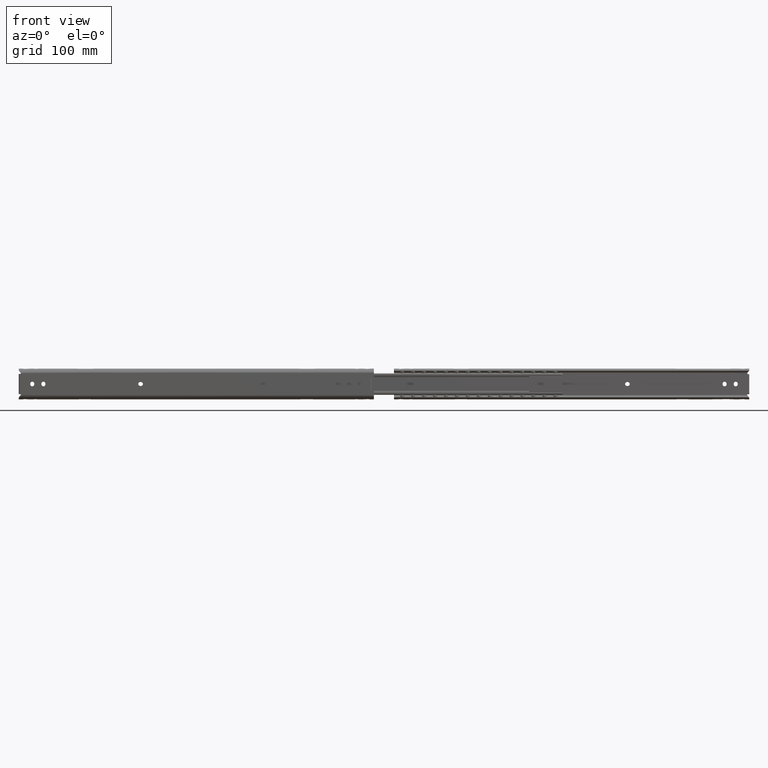
[diagram: clean part render]
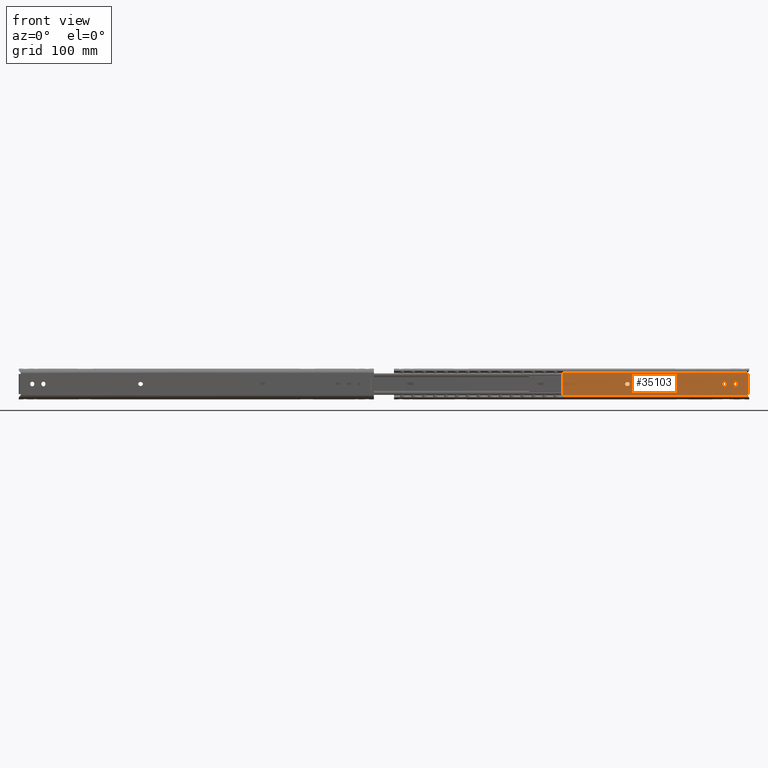
[diagram: same view with one face highlighted and labeled with its STEP entity id]
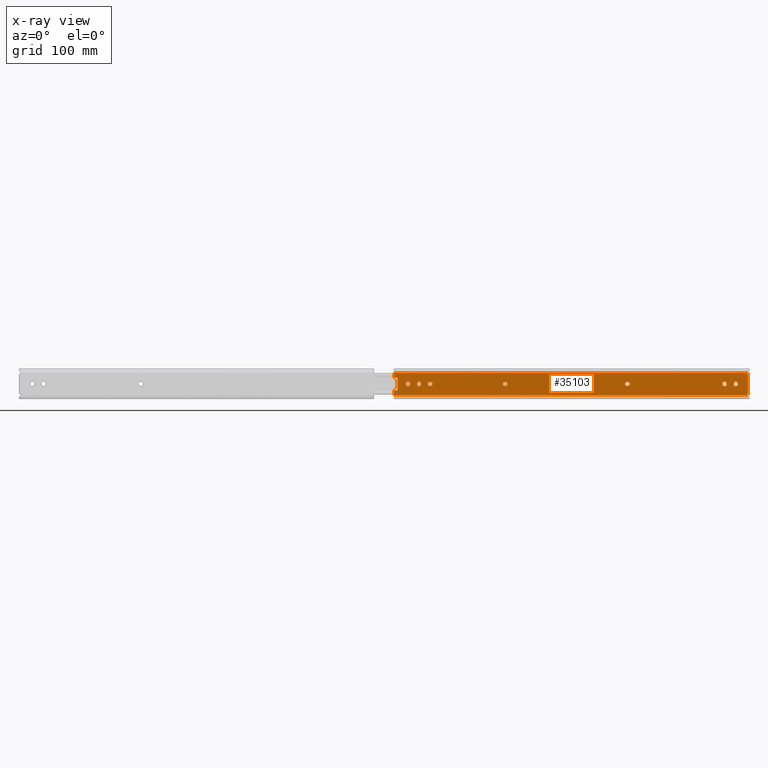
[diagram: x-ray of the same camera — body ghosted, the highlighted face saturated]
A machine part, front view. The second image highlights one B-rep face of the part: STEP entity #35103.
The next image is the same camera in x-ray: the body ghosted, the highlighted face saturated — about 0% of this face is hidden behind the body in this view.
In plain terms, the highlighted face is a freeform B-spline surface patch.
Its self-contained STEP definition (entity closure, byte-faithful):
#31739=CARTESIAN_POINT('',(-17.750000000000000,-1.599999999999045,-0.400000000000091));
#31740=VERTEX_POINT('',#31739);
#31753=CARTESIAN_POINT('',(-17.750000000000000,-1.599999999999000,0.400000000000007));
#31754=VERTEX_POINT('',#31753);
#31760=CARTESIAN_POINT('',(-17.750000000000000,-1.599999999999045,-0.400000000000091));
#31761=CARTESIAN_POINT('',(-17.750000000000000,-1.599999999999000,0.400000000000007));
#31762=QUASI_UNIFORM_CURVE('',1,(#31760,#31761),.UNSPECIFIED.,.F.,.U.);
#31763=EDGE_CURVE('',#31740,#31754,#31762,.T.);
#31786=CARTESIAN_POINT('',(-13.250000000000000,-1.599999999999045,0.400000000000006));
#31787=VERTEX_POINT('',#31786);
#31788=CARTESIAN_POINT('',(-13.250000000000000,-1.599999999999045,0.400000000000006));
#31789=CARTESIAN_POINT('',(-13.250000000000004,-1.599999999999046,2.650000000000006));
#31790=CARTESIAN_POINT('',(-15.500000000000000,-1.599999999999045,2.650000000000005));
#31791=CARTESIAN_POINT('',(-17.750000000000004,-1.599999999999046,2.650000000000006));
#31792=CARTESIAN_POINT('',(-17.750000000000000,-1.599999999999045,0.400000000000006));
#31800=(BOUNDED_CURVE()B_SPLINE_CURVE(2,(#31788,#31789,#31790,#31791,#31792),.UNSPECIFIED.,.F.,.U.)B_SPLINE_CURVE_WITH_KNOTS((3,2,3),(0.0,0.500000000000000,1.0),.UNSPECIFIED.)CURVE()GEOMETRIC_REPRESENTATION_ITEM()RATIONAL_B_SPLINE_CURVE((1.0,0.707106781186547,1.0,0.707106781186547,1.0))REPRESENTATION_ITEM(''));
#31801=EDGE_CURVE('',#31787,#31754,#31800,.T.);
#31842=CARTESIAN_POINT('',(-13.250000000000000,-1.599999999999045,-0.400000000000091));
#31843=VERTEX_POINT('',#31842);
#31849=CARTESIAN_POINT('',(-13.250000000000000,-1.599999999999045,0.400000000000006));
#31850=CARTESIAN_POINT('',(-13.250000000000000,-1.599999999999045,-0.400000000000091));
#31851=QUASI_UNIFORM_CURVE('',1,(#31849,#31850),.UNSPECIFIED.,.F.,.U.);
#31852=EDGE_CURVE('',#31787,#31843,#31851,.T.);
#31875=CARTESIAN_POINT('',(-17.750000000000000,-1.599999999999045,-0.400000000000091));
#31876=CARTESIAN_POINT('',(-17.750000000000004,-1.599999999999046,-2.650000000000091));
#31877=CARTESIAN_POINT('',(-15.500000000000000,-1.599999999999045,-2.650000000000091));
#31878=CARTESIAN_POINT('',(-13.250000000000004,-1.599999999999046,-2.650000000000091));
#31879=CARTESIAN_POINT('',(-13.250000000000000,-1.599999999999045,-0.400000000000091));
#31887=(BOUNDED_CURVE()B_SPLINE_CURVE(2,(#31875,#31876,#31877,#31878,#31879),.UNSPECIFIED.,.F.,.U.)B_SPLINE_CURVE_WITH_KNOTS((3,2,3),(0.0,0.500000000000000,1.0),.UNSPECIFIED.)CURVE()GEOMETRIC_REPRESENTATION_ITEM()RATIONAL_B_SPLINE_CURVE((1.0,0.707106781186547,1.0,0.707106781186547,1.0))REPRESENTATION_ITEM(''));
#31888=EDGE_CURVE('',#31740,#31843,#31887,.T.);
#31917=CARTESIAN_POINT('',(-375.149999999999980,-1.599999999999045,0.400000000000006));
#31918=VERTEX_POINT('',#31917);
#31931=CARTESIAN_POINT('',(-375.149999999999980,-1.599999999999000,-0.400000000000092));
#31932=VERTEX_POINT('',#31931);
#31938=CARTESIAN_POINT('',(-375.149999999999980,-1.599999999999045,0.400000000000006));
#31939=CARTESIAN_POINT('',(-375.149999999999980,-1.599999999999000,-0.400000000000092));
#31940=QUASI_UNIFORM_CURVE('',1,(#31938,#31939),.UNSPECIFIED.,.F.,.U.);
#31941=EDGE_CURVE('',#31918,#31932,#31940,.T.);
#31964=CARTESIAN_POINT('',(-379.649999999999980,-1.599999999999045,-0.400000000000091));
#31965=VERTEX_POINT('',#31964);
#31966=CARTESIAN_POINT('',(-379.649999999999980,-1.599999999999045,-0.400000000000091));
#31967=CARTESIAN_POINT('',(-379.650000000000090,-1.599999999999046,-2.650000000000091));
#31968=CARTESIAN_POINT('',(-377.399999999999980,-1.599999999999045,-2.650000000000091));
#31969=CARTESIAN_POINT('',(-375.150000000000090,-1.599999999999046,-2.650000000000091));
#31970=CARTESIAN_POINT('',(-375.149999999999980,-1.599999999999045,-0.400000000000091));
#31978=(BOUNDED_CURVE()B_SPLINE_CURVE(2,(#31966,#31967,#31968,#31969,#31970),.UNSPECIFIED.,.F.,.U.)B_SPLINE_CURVE_WITH_KNOTS((3,2,3),(0.0,0.500000000000000,1.0),.UNSPECIFIED.)CURVE()GEOMETRIC_REPRESENTATION_ITEM()RATIONAL_B_SPLINE_CURVE((1.0,0.707106781186547,1.0,0.707106781186547,1.0))REPRESENTATION_ITEM(''));
#31979=EDGE_CURVE('',#31965,#31932,#31978,.T.);
#32020=CARTESIAN_POINT('',(-379.649999999999980,-1.599999999999045,0.400000000000006));
#32021=VERTEX_POINT('',#32020);
#32027=CARTESIAN_POINT('',(-379.649999999999980,-1.599999999999045,-0.400000000000091));
#32028=CARTESIAN_POINT('',(-379.649999999999980,-1.599999999999045,0.400000000000006));
#32029=QUASI_UNIFORM_CURVE('',1,(#32027,#32028),.UNSPECIFIED.,.F.,.U.);
#32030=EDGE_CURVE('',#31965,#32021,#32029,.T.);
#32053=CARTESIAN_POINT('',(-375.149999999999980,-1.599999999999045,0.400000000000006));
#32054=CARTESIAN_POINT('',(-375.150000000000090,-1.599999999999046,2.650000000000006));
#32055=CARTESIAN_POINT('',(-377.399999999999980,-1.599999999999045,2.650000000000005));
#32056=CARTESIAN_POINT('',(-379.650000000000090,-1.599999999999046,2.650000000000006));
#32057=CARTESIAN_POINT('',(-379.649999999999980,-1.599999999999045,0.400000000000006));
#32065=(BOUNDED_CURVE()B_SPLINE_CURVE(2,(#32053,#32054,#32055,#32056,#32057),.UNSPECIFIED.,.F.,.U.)B_SPLINE_CURVE_WITH_KNOTS((3,2,3),(0.0,0.500000000000000,1.0),.UNSPECIFIED.)CURVE()GEOMETRIC_REPRESENTATION_ITEM()RATIONAL_B_SPLINE_CURVE((1.0,0.707106781186547,1.0,0.707106781186547,1.0))REPRESENTATION_ITEM(''));
#32066=EDGE_CURVE('',#31918,#32021,#32065,.T.);
#32095=CARTESIAN_POINT('',(-392.350000000000020,-1.599999999999045,-0.400000000000091));
#32096=VERTEX_POINT('',#32095);
#32109=CARTESIAN_POINT('',(-392.350000000000020,-1.599999999999000,0.400000000000007));
#32110=VERTEX_POINT('',#32109);
#32116=CARTESIAN_POINT('',(-392.350000000000020,-1.599999999999045,-0.400000000000091));
#32117=CARTESIAN_POINT('',(-392.350000000000020,-1.599999999999000,0.400000000000007));
#32118=QUASI_UNIFORM_CURVE('',1,(#32116,#32117),.UNSPECIFIED.,.F.,.U.);
#32119=EDGE_CURVE('',#32096,#32110,#32118,.T.);
#32142=CARTESIAN_POINT('',(-387.850000000000020,-1.599999999999045,0.400000000000006));
#32143=VERTEX_POINT('',#32142);
#32144=CARTESIAN_POINT('',(-387.850000000000020,-1.599999999999045,0.400000000000006));
#32145=CARTESIAN_POINT('',(-387.850000000000080,-1.599999999999046,2.650000000000006));
#32146=CARTESIAN_POINT('',(-390.100000000000020,-1.599999999999045,2.650000000000005));
#32147=CARTESIAN_POINT('',(-392.350000000000020,-1.599999999999046,2.650000000000006));
#32148=CARTESIAN_POINT('',(-392.350000000000020,-1.599999999999045,0.400000000000006));
#32156=(BOUNDED_CURVE()B_SPLINE_CURVE(2,(#32144,#32145,#32146,#32147,#32148),.UNSPECIFIED.,.F.,.U.)B_SPLINE_CURVE_WITH_KNOTS((3,2,3),(0.0,0.500000000000000,1.0),.UNSPECIFIED.)CURVE()GEOMETRIC_REPRESENTATION_ITEM()RATIONAL_B_SPLINE_CURVE((1.0,0.707106781186547,1.0,0.707106781186547,1.0))REPRESENTATION_ITEM(''));
#32157=EDGE_CURVE('',#32143,#32110,#32156,.T.);
#32198=CARTESIAN_POINT('',(-387.850000000000020,-1.599999999999045,-0.400000000000091));
#32199=VERTEX_POINT('',#32198);
#32205=CARTESIAN_POINT('',(-387.850000000000020,-1.599999999999045,0.400000000000006));
#32206=CARTESIAN_POINT('',(-387.850000000000020,-1.599999999999045,-0.400000000000091));
#32207=QUASI_UNIFORM_CURVE('',1,(#32205,#32206),.UNSPECIFIED.,.F.,.U.);
#32208=EDGE_CURVE('',#32143,#32199,#32207,.T.);
#32231=CARTESIAN_POINT('',(-392.350000000000020,-1.599999999999045,-0.400000000000091));
#32232=CARTESIAN_POINT('',(-392.350000000000020,-1.599999999999046,-2.650000000000091));
#32233=CARTESIAN_POINT('',(-390.100000000000020,-1.599999999999045,-2.650000000000091));
#32234=CARTESIAN_POINT('',(-387.850000000000080,-1.599999999999046,-2.650000000000091));
#32235=CARTESIAN_POINT('',(-387.850000000000020,-1.599999999999045,-0.400000000000091));
#32243=(BOUNDED_CURVE()B_SPLINE_CURVE(2,(#32231,#32232,#32233,#32234,#32235),.UNSPECIFIED.,.F.,.U.)B_SPLINE_CURVE_WITH_KNOTS((3,2,3),(0.0,0.500000000000000,1.0),.UNSPECIFIED.)CURVE()GEOMETRIC_REPRESENTATION_ITEM()RATIONAL_B_SPLINE_CURVE((1.0,0.707106781186547,1.0,0.707106781186547,1.0))REPRESENTATION_ITEM(''));
#32244=EDGE_CURVE('',#32096,#32199,#32243,.T.);
#32284=CARTESIAN_POINT('',(-364.300000000000010,-1.599999999999045,-2.250000000000000));
#32285=VERTEX_POINT('',#32284);
#32286=CARTESIAN_POINT('',(-364.300000000000010,-1.599999999999045,2.250000000000000));
#32287=VERTEX_POINT('',#32286);
#32288=CARTESIAN_POINT('',(-364.300000000000010,-1.599999999999045,-2.250000000000000));
#32289=CARTESIAN_POINT('',(-362.049999999999950,-1.599999999999046,-2.250000000000000));
#32290=CARTESIAN_POINT('',(-362.050000000000010,-1.599999999999045,0.0));
#32291=CARTESIAN_POINT('',(-362.049999999999950,-1.599999999999046,2.250000000000000));
#32292=CARTESIAN_POINT('',(-364.300000000000010,-1.599999999999045,2.250000000000000));
#32300=(BOUNDED_CURVE()B_SPLINE_CURVE(2,(#32288,#32289,#32290,#32291,#32292),.UNSPECIFIED.,.F.,.U.)B_SPLINE_CURVE_WITH_KNOTS((3,2,3),(0.0,0.500000000000000,1.0),.UNSPECIFIED.)CURVE()GEOMETRIC_REPRESENTATION_ITEM()RATIONAL_B_SPLINE_CURVE((1.0,0.707106781186547,1.0,0.707106781186547,1.0))REPRESENTATION_ITEM(''));
#32301=EDGE_CURVE('',#32285,#32287,#32300,.T.);
#32342=CARTESIAN_POINT('',(-365.100000000000020,-1.599999999999045,2.250000000000000));
#32343=VERTEX_POINT('',#32342);
#32355=CARTESIAN_POINT('',(-365.100000000000020,-1.599999999999045,2.250000000000000));
#32356=CARTESIAN_POINT('',(-364.300000000000010,-1.599999999999045,2.250000000000000));
#32357=QUASI_UNIFORM_CURVE('',1,(#32355,#32356),.UNSPECIFIED.,.F.,.U.);
#32358=EDGE_CURVE('',#32343,#32287,#32357,.T.);
#32381=CARTESIAN_POINT('',(-365.100000000000020,-1.599999999999045,-2.250000000000000));
#32382=VERTEX_POINT('',#32381);
#32383=CARTESIAN_POINT('',(-365.100000000000020,-1.599999999999045,2.250000000000000));
#32384=CARTESIAN_POINT('',(-367.349999999999970,-1.599999999999046,2.250000000000000));
#32385=CARTESIAN_POINT('',(-367.350000000000020,-1.599999999999045,0.0));
#32386=CARTESIAN_POINT('',(-367.349999999999970,-1.599999999999046,-2.250000000000000));
#32387=CARTESIAN_POINT('',(-365.100000000000020,-1.599999999999045,-2.250000000000000));
#32395=(BOUNDED_CURVE()B_SPLINE_CURVE(2,(#32383,#32384,#32385,#32386,#32387),.UNSPECIFIED.,.F.,.U.)B_SPLINE_CURVE_WITH_KNOTS((3,2,3),(0.0,0.500000000000000,1.0),.UNSPECIFIED.)CURVE()GEOMETRIC_REPRESENTATION_ITEM()RATIONAL_B_SPLINE_CURVE((1.0,0.707106781186547,1.0,0.707106781186547,1.0))REPRESENTATION_ITEM(''));
#32396=EDGE_CURVE('',#32343,#32382,#32395,.T.);
#32436=CARTESIAN_POINT('',(-364.300000000000010,-1.599999999999045,-2.250000000000000));
#32437=CARTESIAN_POINT('',(-365.100000000000020,-1.599999999999045,-2.250000000000000));
#32438=QUASI_UNIFORM_CURVE('',1,(#32436,#32437),.UNSPECIFIED.,.F.,.U.);
#32439=EDGE_CURVE('',#32285,#32382,#32438,.T.);
#32451=CARTESIAN_POINT('',(-30.449999999999999,-1.599999999999045,-0.400000000000091));
#32452=VERTEX_POINT('',#32451);
#32465=CARTESIAN_POINT('',(-30.449999999999999,-1.599999999999000,0.400000000000007));
#32466=VERTEX_POINT('',#32465);
#32472=CARTESIAN_POINT('',(-30.449999999999999,-1.599999999999045,-0.400000000000091));
#32473=CARTESIAN_POINT('',(-30.449999999999999,-1.599999999999000,0.400000000000007));
#32474=QUASI_UNIFORM_CURVE('',1,(#32472,#32473),.UNSPECIFIED.,.F.,.U.);
#32475=EDGE_CURVE('',#32452,#32466,#32474,.T.);
#32498=CARTESIAN_POINT('',(-25.949999999999999,-1.599999999999045,0.400000000000006));
#32499=VERTEX_POINT('',#32498);
#32500=CARTESIAN_POINT('',(-25.949999999999999,-1.599999999999045,0.400000000000006));
#32501=CARTESIAN_POINT('',(-25.950000000000003,-1.599999999999046,2.650000000000006));
#32502=CARTESIAN_POINT('',(-28.199999999999999,-1.599999999999045,2.650000000000005));
#32503=CARTESIAN_POINT('',(-30.449999999999999,-1.599999999999046,2.650000000000006));
#32504=CARTESIAN_POINT('',(-30.449999999999999,-1.599999999999045,0.400000000000006));
#32512=(BOUNDED_CURVE()B_SPLINE_CURVE(2,(#32500,#32501,#32502,#32503,#32504),.UNSPECIFIED.,.F.,.U.)B_SPLINE_CURVE_WITH_KNOTS((3,2,3),(0.0,0.500000000000000,1.0),.UNSPECIFIED.)CURVE()GEOMETRIC_REPRESENTATION_ITEM()RATIONAL_B_SPLINE_CURVE((1.0,0.707106781186547,1.0,0.707106781186547,1.0))REPRESENTATION_ITEM(''));
#32513=EDGE_CURVE('',#32499,#32466,#32512,.T.);
#32554=CARTESIAN_POINT('',(-25.949999999999999,-1.599999999999045,-0.400000000000091));
#32555=VERTEX_POINT('',#32554);
#32561=CARTESIAN_POINT('',(-25.949999999999999,-1.599999999999045,0.400000000000006));
#32562=CARTESIAN_POINT('',(-25.949999999999999,-1.599999999999045,-0.400000000000091));
#32563=QUASI_UNIFORM_CURVE('',1,(#32561,#32562),.UNSPECIFIED.,.F.,.U.);
#32564=EDGE_CURVE('',#32499,#32555,#32563,.T.);
#32587=CARTESIAN_POINT('',(-30.449999999999999,-1.599999999999045,-0.400000000000091));
#32588=CARTESIAN_POINT('',(-30.449999999999999,-1.599999999999046,-2.650000000000091));
#32589=CARTESIAN_POINT('',(-28.199999999999999,-1.599999999999045,-2.650000000000091));
#32590=CARTESIAN_POINT('',(-25.950000000000003,-1.599999999999046,-2.650000000000091));
#32591=CARTESIAN_POINT('',(-25.949999999999999,-1.599999999999045,-0.400000000000091));
#32599=(BOUNDED_CURVE()B_SPLINE_CURVE(2,(#32587,#32588,#32589,#32590,#32591),.UNSPECIFIED.,.F.,.U.)B_SPLINE_CURVE_WITH_KNOTS((3,2,3),(0.0,0.500000000000000,1.0),.UNSPECIFIED.)CURVE()GEOMETRIC_REPRESENTATION_ITEM()RATIONAL_B_SPLINE_CURVE((1.0,0.707106781186547,1.0,0.707106781186547,1.0))REPRESENTATION_ITEM(''));
#32600=EDGE_CURVE('',#32452,#32555,#32599,.T.);
#32640=CARTESIAN_POINT('',(-139.699999999999990,-1.599999999999045,2.250000000000000));
#32641=VERTEX_POINT('',#32640);
#32642=CARTESIAN_POINT('',(-139.699999999999990,-1.599999999999045,-2.250000000000000));
#32643=VERTEX_POINT('',#32642);
#32644=CARTESIAN_POINT('',(-139.699999999999990,-1.599999999999045,2.250000000000000));
#32645=CARTESIAN_POINT('',(-141.949999999999990,-1.599999999999046,2.250000000000000));
#32646=CARTESIAN_POINT('',(-141.949999999999990,-1.599999999999045,0.0));
#32647=CARTESIAN_POINT('',(-141.949999999999990,-1.599999999999046,-2.250000000000000));
#32648=CARTESIAN_POINT('',(-139.699999999999990,-1.599999999999045,-2.250000000000000));
#32656=(BOUNDED_CURVE()B_SPLINE_CURVE(2,(#32644,#32645,#32646,#32647,#32648),.UNSPECIFIED.,.F.,.U.)B_SPLINE_CURVE_WITH_KNOTS((3,2,3),(0.0,0.500000000000000,1.0),.UNSPECIFIED.)CURVE()GEOMETRIC_REPRESENTATION_ITEM()RATIONAL_B_SPLINE_CURVE((1.0,0.707106781186547,1.0,0.707106781186547,1.0))REPRESENTATION_ITEM(''));
#32657=EDGE_CURVE('',#32641,#32643,#32656,.T.);
#32696=CARTESIAN_POINT('',(-138.900000000000010,-1.599999999999045,2.250000000000000));
#32697=VERTEX_POINT('',#32696);
#32698=CARTESIAN_POINT('',(-138.900000000000010,-1.599999999999045,2.250000000000000));
#32699=CARTESIAN_POINT('',(-139.699999999999990,-1.599999999999045,2.250000000000000));
#32700=QUASI_UNIFORM_CURVE('',1,(#32698,#32699),.UNSPECIFIED.,.F.,.U.);
#32701=EDGE_CURVE('',#32697,#32641,#32700,.T.);
#32737=CARTESIAN_POINT('',(-138.900000000000010,-1.599999999999045,-2.250000000000000));
#32738=VERTEX_POINT('',#32737);
#32739=CARTESIAN_POINT('',(-138.900000000000010,-1.599999999999045,-2.250000000000000));
#32740=CARTESIAN_POINT('',(-136.650000000000010,-1.599999999999046,-2.250000000000000));
#32741=CARTESIAN_POINT('',(-136.650000000000010,-1.599999999999045,0.0));
#32742=CARTESIAN_POINT('',(-136.650000000000010,-1.599999999999046,2.250000000000000));
#32743=CARTESIAN_POINT('',(-138.900000000000010,-1.599999999999045,2.250000000000000));
#32751=(BOUNDED_CURVE()B_SPLINE_CURVE(2,(#32739,#32740,#32741,#32742,#32743),.UNSPECIFIED.,.F.,.U.)B_SPLINE_CURVE_WITH_KNOTS((3,2,3),(0.0,0.500000000000000,1.0),.UNSPECIFIED.)CURVE()GEOMETRIC_REPRESENTATION_ITEM()RATIONAL_B_SPLINE_CURVE((1.0,0.707106781186547,1.0,0.707106781186547,1.0))REPRESENTATION_ITEM(''));
#32752=EDGE_CURVE('',#32738,#32697,#32751,.T.);
#32785=CARTESIAN_POINT('',(-139.699999999999990,-1.599999999999045,-2.250000000000000));
#32786=CARTESIAN_POINT('',(-138.900000000000010,-1.599999999999045,-2.250000000000000));
#32787=QUASI_UNIFORM_CURVE('',1,(#32785,#32786),.UNSPECIFIED.,.F.,.U.);
#32788=EDGE_CURVE('',#32643,#32738,#32787,.T.);
#32818=CARTESIAN_POINT('',(-279.399999999999980,-1.599999999999045,2.250000000000000));
#32819=VERTEX_POINT('',#32818);
#32820=CARTESIAN_POINT('',(-279.399999999999980,-1.599999999999045,-2.250000000000200));
#32821=VERTEX_POINT('',#32820);
#32822=CARTESIAN_POINT('',(-279.399999999999980,-1.599999999999045,2.250000000000000));
#32823=CARTESIAN_POINT('',(-281.650000000000030,-1.599999999999046,2.250000000000000));
#32824=CARTESIAN_POINT('',(-281.649999999999980,-1.599999999999045,0.0));
#32825=CARTESIAN_POINT('',(-281.650000000000030,-1.599999999999046,-2.250000000000000));
#32826=CARTESIAN_POINT('',(-279.399999999999980,-1.599999999999045,-2.250000000000000));
#32834=(BOUNDED_CURVE()B_SPLINE_CURVE(2,(#32822,#32823,#32824,#32825,#32826),.UNSPECIFIED.,.F.,.U.)B_SPLINE_CURVE_WITH_KNOTS((3,2,3),(0.0,0.500000000000000,1.0),.UNSPECIFIED.)CURVE()GEOMETRIC_REPRESENTATION_ITEM()RATIONAL_B_SPLINE_CURVE((1.0,0.707106781186547,1.0,0.707106781186547,1.0))REPRESENTATION_ITEM(''));
#32835=EDGE_CURVE('',#32819,#32821,#32834,.T.);
#32876=CARTESIAN_POINT('',(-278.600000000000020,-1.599999999999045,-2.250000000000000));
#32877=VERTEX_POINT('',#32876);
#32889=CARTESIAN_POINT('',(-278.600000000000020,-1.599999999999045,-2.250000000000000));
#32890=CARTESIAN_POINT('',(-279.399999999999980,-1.599999999999045,-2.250000000000200));
#32891=QUASI_UNIFORM_CURVE('',1,(#32889,#32890),.UNSPECIFIED.,.F.,.U.);
#32892=EDGE_CURVE('',#32877,#32821,#32891,.T.);
#32915=CARTESIAN_POINT('',(-278.600000000000020,-1.599999999999045,2.250000000000000));
#32916=VERTEX_POINT('',#32915);
#32917=CARTESIAN_POINT('',(-278.600000000000020,-1.599999999999045,-2.250000000000000));
#32918=CARTESIAN_POINT('',(-276.350000000000020,-1.599999999999046,-2.250000000000000));
#32919=CARTESIAN_POINT('',(-276.350000000000020,-1.599999999999045,0.0));
#32920=CARTESIAN_POINT('',(-276.350000000000020,-1.599999999999046,2.250000000000000));
#32921=CARTESIAN_POINT('',(-278.600000000000020,-1.599999999999045,2.250000000000000));
#32929=(BOUNDED_CURVE()B_SPLINE_CURVE(2,(#32917,#32918,#32919,#32920,#32921),.UNSPECIFIED.,.F.,.U.)B_SPLINE_CURVE_WITH_KNOTS((3,2,3),(0.0,0.500000000000000,1.0),.UNSPECIFIED.)CURVE()GEOMETRIC_REPRESENTATION_ITEM()RATIONAL_B_SPLINE_CURVE((1.0,0.707106781186547,1.0,0.707106781186547,1.0))REPRESENTATION_ITEM(''));
#32930=EDGE_CURVE('',#32877,#32916,#32929,.T.);
#32970=CARTESIAN_POINT('',(-279.399999999999980,-1.599999999999045,2.250000000000000));
#32971=CARTESIAN_POINT('',(-278.600000000000020,-1.599999999999045,2.250000000000000));
#32972=QUASI_UNIFORM_CURVE('',1,(#32970,#32971),.UNSPECIFIED.,.F.,.U.);
#32973=EDGE_CURVE('',#32819,#32916,#32972,.T.);
#33055=CARTESIAN_POINT('',(-403.500000000000000,-1.599999999999045,7.500000000000000));
#33056=VERTEX_POINT('',#33055);
#33077=CARTESIAN_POINT('',(-403.500000000000000,-1.599999999999045,-7.500000000000200));
#33078=VERTEX_POINT('',#33077);
#33477=CARTESIAN_POINT('',(-1.599999999999935,-1.599999999999045,-11.500000000000000));
#33478=VERTEX_POINT('',#33477);
#33479=CARTESIAN_POINT('',(-1.599999999999910,-1.599999999999045,11.500000000000000));
#33480=VERTEX_POINT('',#33479);
#33481=CARTESIAN_POINT('',(-1.599999999999935,-1.599999999999045,-11.500000000000000));
#33482=CARTESIAN_POINT('',(-1.599999999999910,-1.599999999999045,11.500000000000000));
#33483=QUASI_UNIFORM_CURVE('',1,(#33481,#33482),.UNSPECIFIED.,.F.,.U.);
#33484=EDGE_CURVE('',#33478,#33480,#33483,.T.);
#33651=CARTESIAN_POINT('',(-401.899999999999980,-1.599999999999000,-7.500000000000200));
#33652=VERTEX_POINT('',#33651);
#33658=CARTESIAN_POINT('',(-401.899999999999980,-1.599999999999000,7.500000000000000));
#33659=VERTEX_POINT('',#33658);
#33660=CARTESIAN_POINT('',(-401.899999999999980,-1.599999999999000,-7.500000000000200));
#33661=CARTESIAN_POINT('',(-401.899999999999980,-1.599999999999000,7.500000000000000));
#33662=QUASI_UNIFORM_CURVE('',1,(#33660,#33661),.UNSPECIFIED.,.F.,.U.);
#33663=EDGE_CURVE('',#33652,#33659,#33662,.T.);
#33685=CARTESIAN_POINT('',(-401.899999999999980,-1.599999999999000,-7.500000000000200));
#33686=CARTESIAN_POINT('',(-403.500000000000000,-1.599999999999045,-7.500000000000200));
#33687=QUASI_UNIFORM_CURVE('',1,(#33685,#33686),.UNSPECIFIED.,.F.,.U.);
#33688=EDGE_CURVE('',#33652,#33078,#33687,.T.);
#33733=CARTESIAN_POINT('',(-403.500000000000000,-1.599999999999045,7.500000000000000));
#33734=CARTESIAN_POINT('',(-401.899999999999980,-1.599999999999000,7.500000000000000));
#33735=QUASI_UNIFORM_CURVE('',1,(#33733,#33734),.UNSPECIFIED.,.F.,.U.);
#33736=EDGE_CURVE('',#33056,#33659,#33735,.T.);
#33829=CARTESIAN_POINT('',(-406.0,-1.599999999999000,7.500000000000000));
#33830=VERTEX_POINT('',#33829);
#33842=CARTESIAN_POINT('',(-406.0,-1.599999999999000,7.500000000000000));
#33843=CARTESIAN_POINT('',(-403.500000000000000,-1.599999999999045,7.500000000000000));
#33844=QUASI_UNIFORM_CURVE('',1,(#33842,#33843),.UNSPECIFIED.,.F.,.U.);
#33845=EDGE_CURVE('',#33830,#33056,#33844,.T.);
#33855=CARTESIAN_POINT('',(-406.0,-1.599999999998935,-7.500000000000200));
#33856=VERTEX_POINT('',#33855);
#33857=CARTESIAN_POINT('',(-403.500000000000000,-1.599999999999045,-7.500000000000200));
#33858=CARTESIAN_POINT('',(-406.0,-1.599999999998935,-7.500000000000200));
#33859=QUASI_UNIFORM_CURVE('',1,(#33857,#33858),.UNSPECIFIED.,.F.,.U.);
#33860=EDGE_CURVE('',#33078,#33856,#33859,.T.);
#34007=CARTESIAN_POINT('',(-2.360134746260130,-1.599999999998910,12.578915999999900));
#34008=VERTEX_POINT('',#34007);
#34018=CARTESIAN_POINT('',(-2.360134746260130,-1.599999999998910,12.578915999999900));
#34019=CARTESIAN_POINT('',(-2.501066018639304,-1.599999999999046,12.184613891433317));
#34020=CARTESIAN_POINT('',(-2.259898584542988,-1.599999999999045,11.842306945716659));
#34021=CARTESIAN_POINT('',(-2.018731150446671,-1.599999999999046,11.500000000000005));
#34022=CARTESIAN_POINT('',(-1.599999999999910,-1.599999999999045,11.500000000000000));
#34030=(BOUNDED_CURVE()B_SPLINE_CURVE(2,(#34018,#34019,#34020,#34021,#34022),.UNSPECIFIED.,.F.,.U.)B_SPLINE_CURVE_WITH_KNOTS((3,2,3),(0.0,0.500000000000000,1.0),.UNSPECIFIED.)CURVE()GEOMETRIC_REPRESENTATION_ITEM()RATIONAL_B_SPLINE_CURVE((1.0,0.887679040060813,1.0,0.887679040060813,1.0))REPRESENTATION_ITEM(''));
#34031=EDGE_CURVE('',#34008,#33480,#34030,.T.);
#34262=CARTESIAN_POINT('',(-2.360134746260075,-1.599999999999045,-12.578916000000000));
#34263=VERTEX_POINT('',#34262);
#34264=CARTESIAN_POINT('',(-1.599999999999910,-1.599999999999045,-11.500000000000000));
#34265=CARTESIAN_POINT('',(-2.018731150446715,-1.599999999999045,-11.500000000000002));
#34266=CARTESIAN_POINT('',(-2.259898584543027,-1.599999999999045,-11.842306945716709));
#34267=CARTESIAN_POINT('',(-2.501066018639330,-1.599999999999045,-12.184613891433418));
#34268=CARTESIAN_POINT('',(-2.360134746260072,-1.599999999999045,-12.578916000000000));
#34276=(BOUNDED_CURVE()B_SPLINE_CURVE(2,(#34264,#34265,#34266,#34267,#34268),.UNSPECIFIED.,.F.,.U.)B_SPLINE_CURVE_WITH_KNOTS((3,2,3),(0.0,0.500000000000000,1.0),.UNSPECIFIED.)CURVE()GEOMETRIC_REPRESENTATION_ITEM()RATIONAL_B_SPLINE_CURVE((1.0,0.887679040060793,1.0,0.887679040060793,1.0))REPRESENTATION_ITEM(''));
#34277=EDGE_CURVE('',#33478,#34263,#34276,.T.);
#34434=CARTESIAN_POINT('',(-406.0,-1.599999999999000,12.578915999999900));
#34435=VERTEX_POINT('',#34434);
#34449=CARTESIAN_POINT('',(-2.360134746260130,-1.599999999998910,12.578915999999900));
#34450=CARTESIAN_POINT('',(-406.0,-1.599999999999000,12.578915999999900));
#34451=QUASI_UNIFORM_CURVE('',1,(#34449,#34450),.UNSPECIFIED.,.F.,.U.);
#34452=EDGE_CURVE('',#34008,#34435,#34451,.T.);
#34472=CARTESIAN_POINT('',(-406.0,-1.599999999998910,-12.578916000000000));
#34473=VERTEX_POINT('',#34472);
#34474=CARTESIAN_POINT('',(-2.360134746260075,-1.599999999999045,-12.578916000000000));
#34475=CARTESIAN_POINT('',(-406.0,-1.599999999998910,-12.578916000000000));
#34476=QUASI_UNIFORM_CURVE('',1,(#34474,#34475),.UNSPECIFIED.,.F.,.U.);
#34477=EDGE_CURVE('',#34263,#34473,#34476,.T.);
#34933=CARTESIAN_POINT('',(-406.0,-1.599999999999000,7.500000000000000));
#34934=CARTESIAN_POINT('',(-406.0,-1.599999999999000,12.578915999999900));
#34935=QUASI_UNIFORM_CURVE('',1,(#34933,#34934),.UNSPECIFIED.,.F.,.U.);
#34936=EDGE_CURVE('',#33830,#34435,#34935,.T.);
#34953=CARTESIAN_POINT('',(-406.0,-1.599999999998910,-12.578916000000000));
#34954=CARTESIAN_POINT('',(-406.0,-1.599999999998935,-7.500000000000200));
#34955=QUASI_UNIFORM_CURVE('',1,(#34953,#34954),.UNSPECIFIED.,.F.,.U.);
#34956=EDGE_CURVE('',#34473,#33856,#34955,.T.);
#35042=CARTESIAN_POINT('',(-426.199779216194490,-1.599999999999000,13.835549333593960));
#35043=CARTESIAN_POINT('',(-426.199779216194490,-1.599999999999000,-13.835548433879881));
#35044=CARTESIAN_POINT('',(18.599790063047720,-1.599999999999000,13.835549333593960));
#35045=CARTESIAN_POINT('',(18.599790063047720,-1.599999999999000,-13.835548433879881));
#35046=B_SPLINE_SURFACE_WITH_KNOTS('',1,1,((#35042,#35044),(#35043,#35045)),.UNSPECIFIED.,.F.,.F.,.U.,(2,2),(2,2),(0.0,27.671097767473839),(0.0,444.799569279242180),.UNSPECIFIED.);
#35047=ORIENTED_EDGE('',*,*,#34277,.F.);
#35048=ORIENTED_EDGE('',*,*,#33484,.T.);
#35049=ORIENTED_EDGE('',*,*,#34031,.F.);
#35050=ORIENTED_EDGE('',*,*,#34452,.T.);
#35051=ORIENTED_EDGE('',*,*,#34936,.F.);
#35052=ORIENTED_EDGE('',*,*,#33845,.T.);
#35053=ORIENTED_EDGE('',*,*,#33736,.T.);
#35054=ORIENTED_EDGE('',*,*,#33663,.F.);
#35055=ORIENTED_EDGE('',*,*,#33688,.T.);
#35056=ORIENTED_EDGE('',*,*,#33860,.T.);
#35057=ORIENTED_EDGE('',*,*,#34956,.F.);
#35058=ORIENTED_EDGE('',*,*,#34477,.F.);
#35059=EDGE_LOOP('',(#35047,#35048,#35049,#35050,#35051,#35052,#35053,#35054,#35055,#35056,#35057,#35058));
#35060=FACE_OUTER_BOUND('',#35059,.T.);
#35061=ORIENTED_EDGE('',*,*,#32066,.F.);
#35062=ORIENTED_EDGE('',*,*,#31941,.T.);
#35063=ORIENTED_EDGE('',*,*,#31979,.F.);
#35064=ORIENTED_EDGE('',*,*,#32030,.T.);
#35065=EDGE_LOOP('',(#35061,#35062,#35063,#35064));
#35066=FACE_BOUND('',#35065,.T.);
#35067=ORIENTED_EDGE('',*,*,#32244,.F.);
#35068=ORIENTED_EDGE('',*,*,#32119,.T.);
#35069=ORIENTED_EDGE('',*,*,#32157,.F.);
#35070=ORIENTED_EDGE('',*,*,#32208,.T.);
#35071=EDGE_LOOP('',(#35067,#35068,#35069,#35070));
#35072=FACE_BOUND('',#35071,.T.);
#35073=ORIENTED_EDGE('',*,*,#32835,.F.);
#35074=ORIENTED_EDGE('',*,*,#32973,.T.);
#35075=ORIENTED_EDGE('',*,*,#32930,.F.);
#35076=ORIENTED_EDGE('',*,*,#32892,.T.);
#35077=EDGE_LOOP('',(#35073,#35074,#35075,#35076));
#35078=FACE_BOUND('',#35077,.T.);
#35079=ORIENTED_EDGE('',*,*,#31888,.F.);
#35080=ORIENTED_EDGE('',*,*,#31763,.T.);
#35081=ORIENTED_EDGE('',*,*,#31801,.F.);
#35082=ORIENTED_EDGE('',*,*,#31852,.T.);
#35083=EDGE_LOOP('',(#35079,#35080,#35081,#35082));
#35084=FACE_BOUND('',#35083,.T.);
#35085=ORIENTED_EDGE('',*,*,#32788,.F.);
#35086=ORIENTED_EDGE('',*,*,#32657,.F.);
#35087=ORIENTED_EDGE('',*,*,#32701,.F.);
#35088=ORIENTED_EDGE('',*,*,#32752,.F.);
#35089=EDGE_LOOP('',(#35085,#35086,#35087,#35088));
#35090=FACE_BOUND('',#35089,.T.);
#35091=ORIENTED_EDGE('',*,*,#32600,.F.);
#35092=ORIENTED_EDGE('',*,*,#32475,.T.);
#35093=ORIENTED_EDGE('',*,*,#32513,.F.);
#35094=ORIENTED_EDGE('',*,*,#32564,.T.);
#35095=EDGE_LOOP('',(#35091,#35092,#35093,#35094));
#35096=FACE_BOUND('',#35095,.T.);
#35097=ORIENTED_EDGE('',*,*,#32301,.F.);
#35098=ORIENTED_EDGE('',*,*,#32439,.T.);
#35099=ORIENTED_EDGE('',*,*,#32396,.F.);
#35100=ORIENTED_EDGE('',*,*,#32358,.T.);
#35101=EDGE_LOOP('',(#35097,#35098,#35099,#35100));
#35102=FACE_BOUND('',#35101,.T.);
#35103=ADVANCED_FACE('',(#35060,#35066,#35072,#35078,#35084,#35090,#35096,#35102),#35046,.T.);